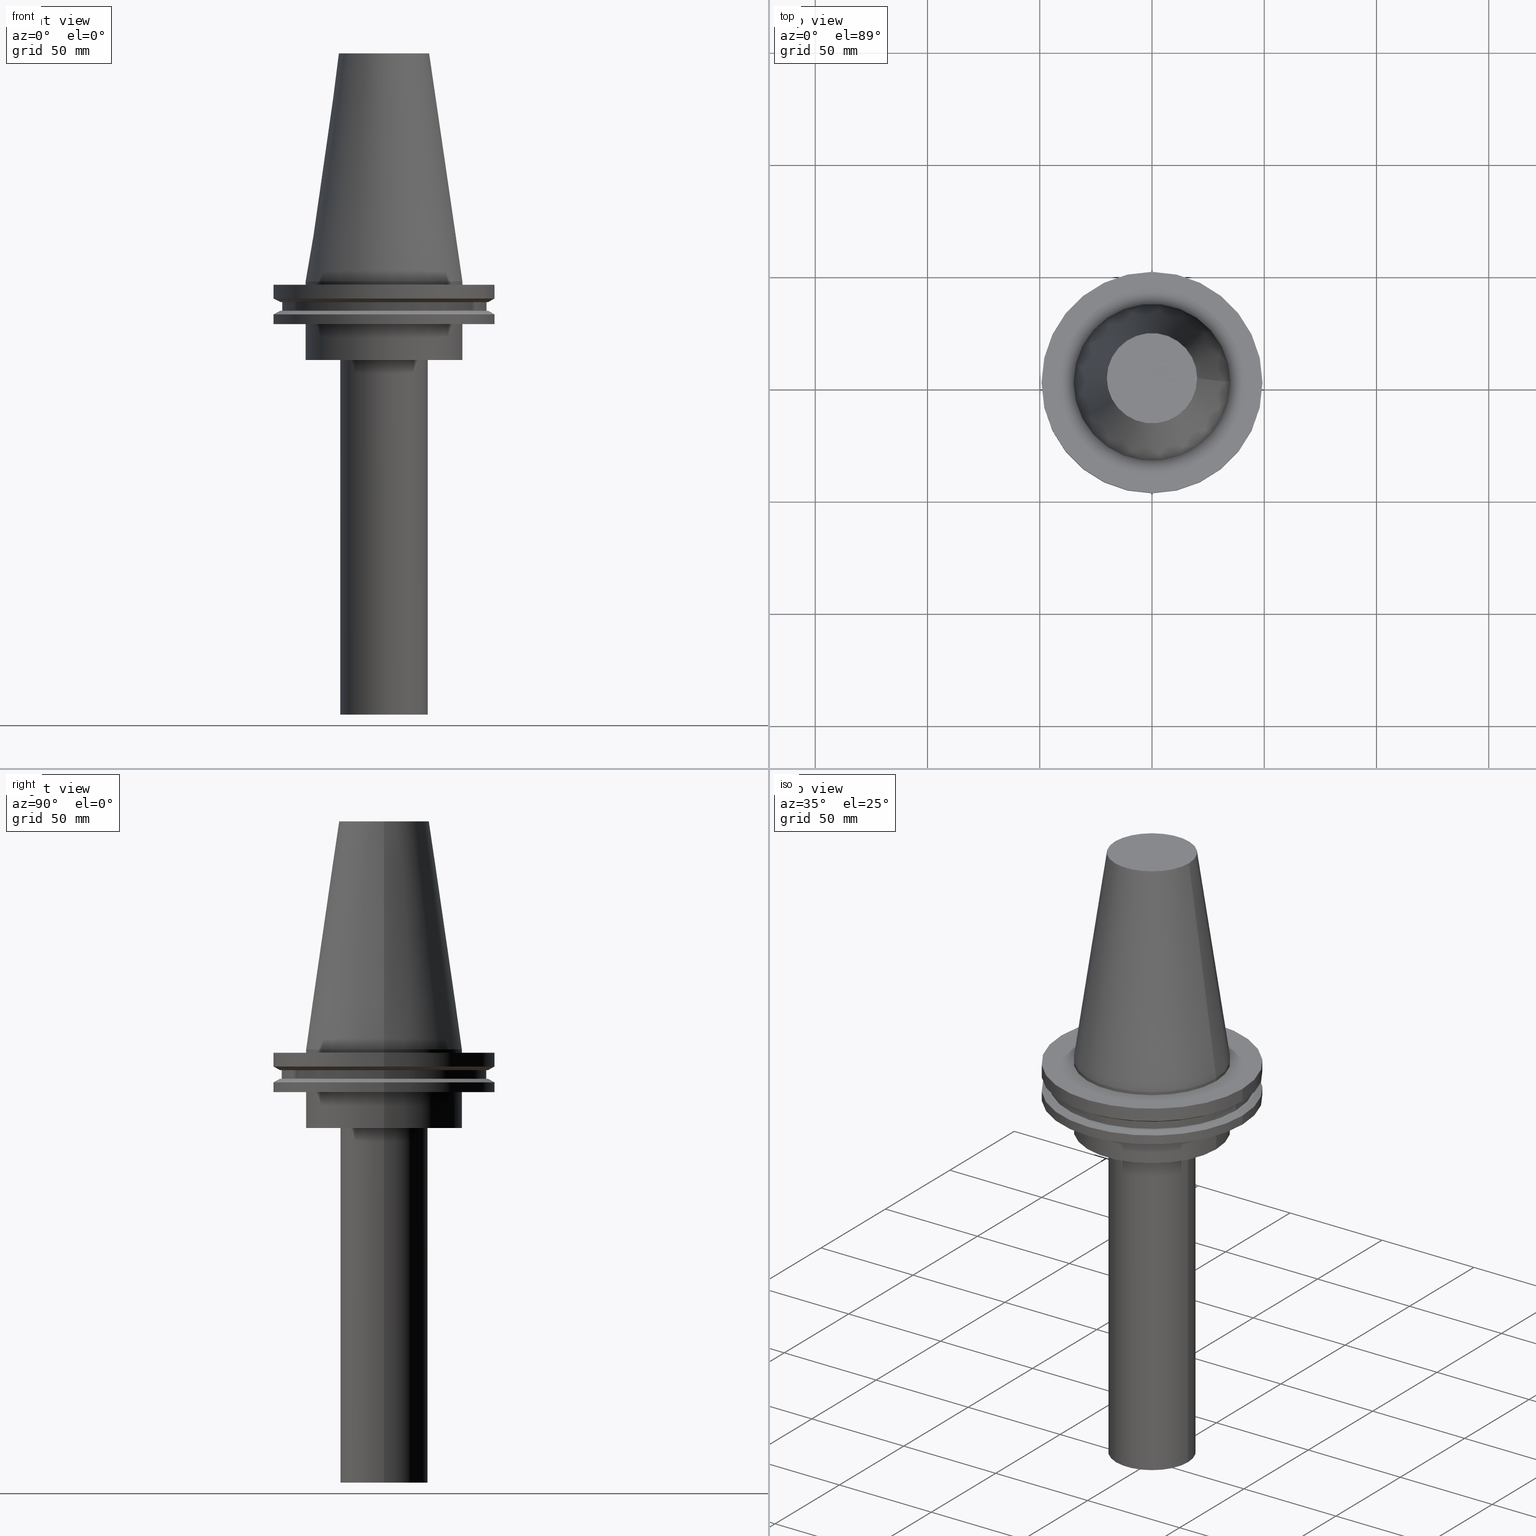
[diagram: canonical four-view strip — front | top / right | iso, engineering-drawing reading convention]
A machine part, canonical four-view strip (front | top / right | iso — engineering-drawing reading convention). The complete STEP part file that produces these views, byte-faithful:
ISO-10303-21;
HEADER;
FILE_DESCRIPTION (( 'STEP AP203' ),
    '1' );
FILE_NAME ('11.326.645.stp',
    '2022-03-09T14:51:24',
    ( '' ),
    ( '' ),
    'SwSTEP 2.0',
    'SolidWorks 2021',
    '' );
FILE_SCHEMA (( 'CONFIG_CONTROL_DESIGN' ));
ENDSEC;

DATA;
#1 = VERTEX_POINT ( 'NONE', #309 ) ;
#2 = ORIENTED_EDGE ( 'NONE', *, *, #239, .F. ) ;
#3 = LOCAL_TIME ( 8, 51, 24.00000000000000000, #191 ) ;
#4 = EDGE_CURVE ( 'NONE', #203, #203, #143, .T. ) ;
#5 = VERTEX_POINT ( 'NONE', #37 ) ;
#6 = ORIENTED_EDGE ( 'NONE', *, *, #231, .F. ) ;
#7 = DATE_TIME_ROLE ( 'creation_date' ) ;
#8 = EDGE_LOOP ( 'NONE', ( #247 ) ) ;
#9 = ORIENTED_EDGE ( 'NONE', *, *, #64, .F. ) ;
#10 = AXIS2_PLACEMENT_3D ( 'NONE', #294, #330, #229 ) ;
#11 = CARTESIAN_POINT ( 'NONE',  ( 0.000000000000000000, 46.43919780457007818, -9.204999999999998295 ) ) ;
#12 = DIRECTION ( 'NONE',  ( 0.000000000000000000, 0.000000000000000000, -1.000000000000000000 ) ) ;
#13 = DIRECTION ( 'NONE',  ( -0.000000000000000000, -0.000000000000000000, 1.000000000000000000 ) ) ;
#14 = APPROVAL_STATUS ( 'not_yet_approved' ) ;
#15 = FACE_OUTER_BOUND ( 'NONE', #277, .T. ) ;
#16 = PERSON_AND_ORGANIZATION ( #256, #169 ) ;
#17 = EDGE_CURVE ( 'NONE', #77, #77, #104, .T. ) ;
#18 = DIRECTION ( 'NONE',  ( 0.000000000000000000, -0.000000000000000000, 1.000000000000000000 ) ) ;
#19 = FACE_OUTER_BOUND ( 'NONE', #149, .T. ) ;
#20 = ADVANCED_FACE ( 'NONE', ( #186, #113 ), #60, .T. ) ;
#21 = PLANE ( 'NONE',  #290 ) ;
#22 = AXIS2_PLACEMENT_3D ( 'NONE', #44, #12, #96 ) ;
#23 = PLANE ( 'NONE',  #43 ) ;
#24 = EDGE_CURVE ( 'NONE', #233, #233, #136, .T. ) ;
#25 = CARTESIAN_POINT ( 'NONE',  ( 20.10819343178871321, 0.000000000000000000, 101.5999999999999801 ) ) ;
#26 = DIRECTION ( 'NONE',  ( -0.000000000000000000, -0.000000000000000000, 1.000000000000000000 ) ) ;
#27 = EDGE_LOOP ( 'NONE', ( #52 ) ) ;
#28 = AXIS2_PLACEMENT_3D ( 'NONE', #298, #109, #387 ) ;
#29 = AXIS2_PLACEMENT_3D ( 'NONE', #11, #18, #194 ) ;
#30 = ORIENTED_EDGE ( 'NONE', *, *, #42, .T. ) ;
#31 = EDGE_LOOP ( 'NONE', ( #295 ) ) ;
#32 = VERTEX_POINT ( 'NONE', #369 ) ;
#33 = ORIENTED_EDGE ( 'NONE', *, *, #351, .F. ) ;
#34 = AXIS2_PLACEMENT_3D ( 'NONE', #324, #132, #78 ) ;
#35 = PERSON_AND_ORGANIZATION ( #256, #169 ) ;
#36 = EDGE_LOOP ( 'NONE', ( #2 ) ) ;
#37 = CARTESIAN_POINT ( 'NONE',  ( 34.92499999999999005, 0.000000000000000000, 0.000000000000000000 ) ) ;
#38 = DIRECTION ( 'NONE',  ( -0.000000000000000000, -0.000000000000000000, 1.000000000000000000 ) ) ;
#39 = APPROVAL_DATE_TIME ( #345, #252 ) ;
#40 = DIRECTION ( 'NONE',  ( -0.000000000000000000, -0.000000000000000000, 1.000000000000000000 ) ) ;
#41 = FACE_BOUND ( 'NONE', #27, .T. ) ;
#42 = EDGE_CURVE ( 'NONE', #299, #299, #59, .T. ) ;
#43 = AXIS2_PLACEMENT_3D ( 'NONE', #293, #75, #55 ) ;
#44 = CARTESIAN_POINT ( 'NONE',  ( 0.000000000000000000, 0.000000000000000000, 0.000000000000000000 ) ) ;
#45 = ADVANCED_FACE ( 'NONE', ( #253, #122 ), #138, .T. ) ;
#46 = APPROVAL_DATE_TIME ( #222, #278 ) ;
#47 = DIRECTION ( 'NONE',  ( 1.000000000000000000, 0.000000000000000000, 0.000000000000000000 ) ) ;
#48 = FACE_OUTER_BOUND ( 'NONE', #80, .T. ) ;
#49 = AXIS2_PLACEMENT_3D ( 'NONE', #383, #128, #289 ) ;
#50 = CARTESIAN_POINT ( 'NONE',  ( 0.000000000000000000, 0.000000000000000000, 101.5999999999999943 ) ) ;
#51 = DIRECTION ( 'NONE',  ( 1.000000000000000000, 0.000000000000000000, 0.000000000000000000 ) ) ;
#52 = ORIENTED_EDGE ( 'NONE', *, *, #164, .T. ) ;
#53 = CARTESIAN_POINT ( 'NONE',  ( 0.000000000000000000, 19.50000000000000000, -193.0000000000000000 ) ) ;
#54 = ADVANCED_FACE ( 'NONE', ( #158, #225 ), #156, .T. ) ;
#55 = DIRECTION ( 'NONE',  ( -1.000000000000000000, 0.000000000000000000, -0.000000000000000000 ) ) ;
#56 = CARTESIAN_POINT ( 'NONE',  ( 0.000000000000000000, 0.000000000000000000, -35.00000000000000000 ) ) ;
#57 = DATE_AND_TIME ( #151, #328 ) ;
#58 = DATE_AND_TIME ( #394, #254 ) ;
#59 = CIRCLE ( 'NONE', #228, 19.50000000000000000 ) ;
#60 = CYLINDRICAL_SURFACE ( 'NONE', #355, 49.21499999999999631 ) ;
#61 = CARTESIAN_POINT ( 'NONE',  ( 0.000000000000000000, 0.000000000000000000, -193.0000000000000000 ) ) ;
#62 = PERSON_AND_ORGANIZATION_ROLE ( 'design_owner' ) ;
#63 = EDGE_LOOP ( 'NONE', ( #216 ) ) ;
#64 = EDGE_CURVE ( 'NONE', #230, #230, #297, .T. ) ;
#65 = APPROVAL_STATUS ( 'not_yet_approved' ) ;
#66 = DIRECTION ( 'NONE',  ( 1.000000000000000000, 0.000000000000000000, 0.000000000000000000 ) ) ;
#67 = ORIENTED_EDGE ( 'NONE', *, *, #385, .F. ) ;
#68 = DIRECTION ( 'NONE',  ( -0.000000000000000000, -0.000000000000000000, 1.000000000000000000 ) ) ;
#69 = PERSON_AND_ORGANIZATION_ROLE ( 'creator' ) ;
#70 = CARTESIAN_POINT ( 'NONE',  ( 0.000000000000000000, 0.000000000000000000, -13.05499999999999794 ) ) ;
#71 = PLANE ( 'NONE',  #29 ) ;
#72 = DIRECTION ( 'NONE',  ( 1.000000000000000000, 0.000000000000000000, 0.000000000000000000 ) ) ;
#73 = CIRCLE ( 'NONE', #334, 19.50000000000000000 ) ;
#74 = FACE_OUTER_BOUND ( 'NONE', #36, .T. ) ;
#75 = DIRECTION ( 'NONE',  ( 0.000000000000000000, 0.000000000000000000, -1.000000000000000000 ) ) ;
#76 = ORIENTED_EDGE ( 'NONE', *, *, #231, .T. ) ;
#77 = VERTEX_POINT ( 'NONE', #25 ) ;
#78 = DIRECTION ( 'NONE',  ( -1.000000000000000000, 0.000000000000000000, -0.000000000000000000 ) ) ;
#79 = FACE_OUTER_BOUND ( 'NONE', #280, .T. ) ;
#80 = EDGE_LOOP ( 'NONE', ( #33 ) ) ;
#81 = VERTEX_POINT ( 'NONE', #112 ) ;
#82 = DIRECTION ( 'NONE',  ( -0.000000000000000000, -0.000000000000000000, 1.000000000000000000 ) ) ;
#83 = VERTEX_POINT ( 'NONE', #184 ) ;
#84 = AXIS2_PLACEMENT_3D ( 'NONE', #318, #130, #258 ) ;
#85 = CARTESIAN_POINT ( 'NONE',  ( 0.000000000000000000, 0.000000000000000000, -19.04999999999999716 ) ) ;
#86 = DIRECTION ( 'NONE',  ( 0.000000000000000000, 0.000000000000000000, 1.000000000000000000 ) ) ;
#87 = EDGE_LOOP ( 'NONE', ( #152 ) ) ;
#88 = CC_DESIGN_DATE_AND_TIME_ASSIGNMENT ( #58, #7, ( #199 ) ) ;
#89 = VERTEX_POINT ( 'NONE', #338 ) ;
#90 = EDGE_LOOP ( 'NONE', ( #312 ) ) ;
#91 = CIRCLE ( 'NONE', #28, 49.21499999999999631 ) ;
#92 = CARTESIAN_POINT ( 'NONE',  ( 0.000000000000000000, 0.000000000000000000, 101.5999999999999801 ) ) ;
#93 = AXIS2_PLACEMENT_3D ( 'NONE', #85, #118, #179 ) ;
#94 = FACE_OUTER_BOUND ( 'NONE', #90, .T. ) ;
#95 = CALENDAR_DATE ( 2022, 9, 3 ) ;
#96 = DIRECTION ( 'NONE',  ( -1.000000000000000000, 0.000000000000000000, 0.000000000000000000 ) ) ;
#97 = APPROVAL_PERSON_ORGANIZATION ( #304, #168, #333 ) ;
#98 = DIRECTION ( 'NONE',  ( 0.000000000000000000, -0.000000000000000000, 1.000000000000000000 ) ) ;
#99 = COORDINATED_UNIVERSAL_TIME_OFFSET ( 6, 0, .BEHIND. ) ;
#100 = FACE_OUTER_BOUND ( 'NONE', #87, .T. ) ;
#101 = CC_DESIGN_PERSON_AND_ORGANIZATION_ASSIGNMENT ( #35, #62, ( #389 ) ) ;
#102 = DIRECTION ( 'NONE',  ( -0.000000000000000000, -0.000000000000000000, 1.000000000000000000 ) ) ;
#103 = FACE_BOUND ( 'NONE', #237, .T. ) ;
#104 = CIRCLE ( 'NONE', #381, 20.10819343178871321 ) ;
#105 = CIRCLE ( 'NONE', #212, 34.92499999999999005 ) ;
#106 = FACE_OUTER_BOUND ( 'NONE', #214, .T. ) ;
#107 = CARTESIAN_POINT ( 'NONE',  ( 19.50000000000000000, 0.000000000000000000, -193.0000000000000000 ) ) ;
#108 = CARTESIAN_POINT ( 'NONE',  ( 49.21499999999998920, 0.000000000000000000, -14.65761014474876944 ) ) ;
#109 = DIRECTION ( 'NONE',  ( -0.000000000000000000, -0.000000000000000000, 1.000000000000000000 ) ) ;
#110 =( NAMED_UNIT ( * ) SI_UNIT ( $, .STERADIAN. ) SOLID_ANGLE_UNIT ( ) );
#111 = ORIENTED_EDGE ( 'NONE', *, *, #164, .F. ) ;
#112 = CARTESIAN_POINT ( 'NONE',  ( 49.21500000000000341, 0.000000000000000000, -7.602389855251287187 ) ) ;
#113 = FACE_OUTER_BOUND ( 'NONE', #343, .T. ) ;
#114 = EDGE_LOOP ( 'NONE', ( #339 ) ) ;
#115 = APPROVAL_ROLE ( '' ) ;
#116 = ORIENTED_EDGE ( 'NONE', *, *, #320, .F. ) ;
#117 = VERTEX_POINT ( 'NONE', #276 ) ;
#118 = DIRECTION ( 'NONE',  ( -0.000000000000000000, -0.000000000000000000, 1.000000000000000000 ) ) ;
#119 = ADVANCED_FACE ( 'NONE', ( #379, #250 ), #219, .F. ) ;
#120 = CIRCLE ( 'NONE', #133, 45.64500000000000313 ) ;
#121 = AXIS2_PLACEMENT_3D ( 'NONE', #395, #82, #342 ) ;
#122 = FACE_OUTER_BOUND ( 'NONE', #307, .T. ) ;
#123 = AXIS2_PLACEMENT_3D ( 'NONE', #190, #377, #47 ) ;
#124 = CC_DESIGN_PERSON_AND_ORGANIZATION_ASSIGNMENT ( #154, #161, ( #202 ) ) ;
#125 = SECURITY_CLASSIFICATION_LEVEL ( 'unclassified' ) ;
#126 = DIRECTION ( 'NONE',  ( -0.000000000000000000, -0.000000000000000000, 1.000000000000000000 ) ) ;
#127 = PERSON_AND_ORGANIZATION_ROLE ( 'design_supplier' ) ;
#128 = DIRECTION ( 'NONE',  ( 0.000000000000000000, -0.000000000000000000, 1.000000000000000000 ) ) ;
#129 = ADVANCED_FACE ( 'NONE', ( #288, #223 ), #265, .T. ) ;
#130 = DIRECTION ( 'NONE',  ( -0.000000000000000000, -0.000000000000000000, 1.000000000000000000 ) ) ;
#131 = DIRECTION ( 'NONE',  ( -0.000000000000000000, -0.000000000000000000, 1.000000000000000000 ) ) ;
#132 = DIRECTION ( 'NONE',  ( 0.000000000000000000, 0.000000000000000000, -1.000000000000000000 ) ) ;
#133 = AXIS2_PLACEMENT_3D ( 'NONE', #266, #226, #51 ) ;
#134 = CC_DESIGN_APPROVAL ( #278, ( #202 ) ) ;
#135 = DIRECTION ( 'NONE',  ( 1.000000000000000000, 0.000000000000000000, 0.000000000000000000 ) ) ;
#136 = CIRCLE ( 'NONE', #93, 49.21499999999998920 ) ;
#137 = CC_DESIGN_PERSON_AND_ORGANIZATION_ASSIGNMENT ( #16, #127, ( #262 ) ) ;
#138 = CONICAL_SURFACE ( 'NONE', #22, 34.92499999999999005, 0.1448138465474119452 ) ;
#139 = DIRECTION ( 'NONE',  ( 1.000000000000000000, 0.000000000000000000, 0.000000000000000000 ) ) ;
#140 = CARTESIAN_POINT ( 'NONE',  ( 46.43919780457007818, 0.000000000000000000, -13.05499999999999794 ) ) ;
#141 = CARTESIAN_POINT ( 'NONE',  ( 0.000000000000000000, 49.21499999999999631, -1.499999999999992895 ) ) ;
#142 = EDGE_CURVE ( 'NONE', #245, #245, #249, .T. ) ;
#143 = CIRCLE ( 'NONE', #121, 49.21499999999998920 ) ;
#144 = CIRCLE ( 'NONE', #317, 34.92499999999999716 ) ;
#145 = DIRECTION ( 'NONE',  ( 1.000000000000000000, 0.000000000000000000, 0.000000000000000000 ) ) ;
#146 = ORIENTED_EDGE ( 'NONE', *, *, #320, .T. ) ;
#147 = COORDINATED_UNIVERSAL_TIME_OFFSET ( 6, 0, .BEHIND. ) ;
#148 = ORIENTED_EDGE ( 'NONE', *, *, #378, .T. ) ;
#149 = EDGE_LOOP ( 'NONE', ( #181 ) ) ;
#150 = CC_DESIGN_APPROVAL ( #168, ( #199 ) ) ;
#151 = CALENDAR_DATE ( 2022, 9, 3 ) ;
#152 = ORIENTED_EDGE ( 'NONE', *, *, #24, .F. ) ;
#153 = DIRECTION ( 'NONE',  ( 1.000000000000000000, 0.000000000000000000, 0.000000000000000000 ) ) ;
#154 = PERSON_AND_ORGANIZATION ( #256, #169 ) ;
#155 = DIRECTION ( 'NONE',  ( 1.000000000000000000, 0.000000000000000000, 0.000000000000000000 ) ) ;
#156 = CYLINDRICAL_SURFACE ( 'NONE', #193, 19.50000000000000000 ) ;
#157 = PERSON_AND_ORGANIZATION ( #256, #169 ) ;
#158 = FACE_OUTER_BOUND ( 'NONE', #274, .T. ) ;
#159 = ADVANCED_FACE ( 'NONE', ( #100, #41 ), #350, .F. ) ;
#160 = DIRECTION ( 'NONE',  ( 1.000000000000000000, 0.000000000000000000, 0.000000000000000000 ) ) ;
#161 = PERSON_AND_ORGANIZATION_ROLE ( 'classification_officer' ) ;
#162 = CARTESIAN_POINT ( 'NONE',  ( 0.000000000000000000, 0.000000000000000000, -13.05499999999999794 ) ) ;
#163 = MANIFOLD_SOLID_BREP ( 'CKB', #185 ) ;
#164 = EDGE_CURVE ( 'NONE', #32, #32, #144, .T. ) ;
#165 = DIRECTION ( 'NONE',  ( 0.000000000000000000, 0.000000000000000000, -1.000000000000000000 ) ) ;
#166 = CYLINDRICAL_SURFACE ( 'NONE', #10, 45.64500000000000313 ) ;
#167 = EDGE_LOOP ( 'NONE', ( #30 ) ) ;
#168 = APPROVAL ( #180, 'UNSPECIFIED' ) ;
#169 = ORGANIZATION ( 'UNSPECIFIED', 'UNSPECIFIED', '' ) ;
#170 = CARTESIAN_POINT ( 'NONE',  ( 0.000000000000000000, 0.000000000000000000, -14.65761014474876944 ) ) ;
#171 = AXIS2_PLACEMENT_3D ( 'NONE', #282, #126, #221 ) ;
#172 = DIRECTION ( 'NONE',  ( 1.000000000000000000, 0.000000000000000000, 0.000000000000000000 ) ) ;
#173 = ADVANCED_FACE ( 'NONE', ( #48, #15 ), #259, .T. ) ;
#174 = PLANE ( 'NONE',  #248 ) ;
#175 = CIRCLE ( 'NONE', #301, 34.92499999999999005 ) ;
#176 =( NAMED_UNIT ( * ) PLANE_ANGLE_UNIT ( ) SI_UNIT ( $, .RADIAN. ) );
#177 = CIRCLE ( 'NONE', #84, 46.43919780457007818 ) ;
#178 = PERSON_AND_ORGANIZATION ( #256, #169 ) ;
#179 = DIRECTION ( 'NONE',  ( 1.000000000000000000, 0.000000000000000000, 0.000000000000000000 ) ) ;
#180 = APPROVAL_STATUS ( 'not_yet_approved' ) ;
#181 = ORIENTED_EDGE ( 'NONE', *, *, #42, .F. ) ;
#182 = APPLICATION_PROTOCOL_DEFINITION ( 'international standard', 'config_control_design', 1994, #332 ) ;
#183 = ORIENTED_EDGE ( 'NONE', *, *, #316, .T. ) ;
#184 = CARTESIAN_POINT ( 'NONE',  ( 46.43919780457007818, 0.000000000000000000, -9.204999999999991189 ) ) ;
#185 = CLOSED_SHELL ( 'NONE', ( #45, #362, #119, #308, #159, #236, #286, #246, #391, #224, #129, #20, #313, #173, #54, #327 ) ) ;
#186 = FACE_OUTER_BOUND ( 'NONE', #331, .T. ) ;
#187 = EDGE_CURVE ( 'NONE', #1, #1, #198, .T. ) ;
#188 = EDGE_LOOP ( 'NONE', ( #373 ) ) ;
#189 = CALENDAR_DATE ( 2022, 9, 3 ) ;
#190 = CARTESIAN_POINT ( 'NONE',  ( 0.000000000000000000, 0.000000000000000000, 101.5999999999999943 ) ) ;
#191 = COORDINATED_UNIVERSAL_TIME_OFFSET ( 6, 0, .BEHIND. ) ;
#192 = DIRECTION ( 'NONE',  ( 1.000000000000000000, 0.000000000000000000, 0.000000000000000000 ) ) ;
#193 = AXIS2_PLACEMENT_3D ( 'NONE', #220, #314, #315 ) ;
#194 = DIRECTION ( 'NONE',  ( 1.000000000000000000, 0.000000000000000000, 0.000000000000000000 ) ) ;
#195 = PERSON_AND_ORGANIZATION ( #256, #169 ) ;
#196 = CARTESIAN_POINT ( 'NONE',  ( 0.000000000000000000, 0.000000000000000000, -35.00000000000000000 ) ) ;
#197 = DIRECTION ( 'NONE',  ( -0.000000000000000000, -0.000000000000000000, 1.000000000000000000 ) ) ;
#198 = CIRCLE ( 'NONE', #386, 34.92499999999999716 ) ;
#199 = PRODUCT_DEFINITION ( 'UNKNOWN', '', #262, #275 ) ;
#200 = CYLINDRICAL_SURFACE ( 'NONE', #392, 34.92499999999999716 ) ;
#201 = CARTESIAN_POINT ( 'NONE',  ( 49.21499999999998920, 0.000000000000000000, -19.04999999999999716 ) ) ;
#202 = SECURITY_CLASSIFICATION ( '', '', #125 ) ;
#203 = VERTEX_POINT ( 'NONE', #108 ) ;
#204 = PRODUCT_RELATED_PRODUCT_CATEGORY ( 'detail', '', ( #389 ) ) ;
#205 = PRODUCT_DEFINITION_SHAPE ( 'NONE', 'NONE',  #199 ) ;
#206 = DIRECTION ( 'NONE',  ( 0.000000000000000000, 0.000000000000000000, -1.000000000000000000 ) ) ;
#207 = EDGE_LOOP ( 'NONE', ( #9 ) ) ;
#208 = APPLICATION_PROTOCOL_DEFINITION ( 'international standard', 'config_control_design', 1994, #303 ) ;
#209 = COORDINATED_UNIVERSAL_TIME_OFFSET ( 6, 0, .BEHIND. ) ;
#210 = CC_DESIGN_APPROVAL ( #252, ( #262 ) ) ;
#211 = DIRECTION ( 'NONE',  ( -0.000000000000000000, -0.000000000000000000, 1.000000000000000000 ) ) ;
#212 = AXIS2_PLACEMENT_3D ( 'NONE', #319, #13, #376 ) ;
#213 = CC_DESIGN_PERSON_AND_ORGANIZATION_ASSIGNMENT ( #271, #279, ( #199 ) ) ;
#214 = EDGE_LOOP ( 'NONE', ( #300 ) ) ;
#215 = CARTESIAN_POINT ( 'NONE',  ( 0.000000000000000000, 0.000000000000000000, 0.000000000000000000 ) ) ;
#216 = ORIENTED_EDGE ( 'NONE', *, *, #17, .F. ) ;
#217 = ORIENTED_EDGE ( 'NONE', *, *, #17, .T. ) ;
#218 = DIRECTION ( 'NONE',  ( 1.000000000000000000, 0.000000000000000000, 0.000000000000000000 ) ) ;
#219 = PLANE ( 'NONE',  #49 ) ;
#220 = CARTESIAN_POINT ( 'NONE',  ( 0.000000000000000000, 0.000000000000000000, 0.000000000000000000 ) ) ;
#221 = DIRECTION ( 'NONE',  ( 1.000000000000000000, 0.000000000000000000, 0.000000000000000000 ) ) ;
#222 = DATE_AND_TIME ( #95, #3 ) ;
#223 = FACE_BOUND ( 'NONE', #31, .T. ) ;
#224 = ADVANCED_FACE ( 'NONE', ( #74, #322 ), #71, .F. ) ;
#225 = FACE_OUTER_BOUND ( 'NONE', #167, .T. ) ;
#226 = DIRECTION ( 'NONE',  ( -0.000000000000000000, -0.000000000000000000, 1.000000000000000000 ) ) ;
#227 = ORIENTED_EDGE ( 'NONE', *, *, #4, .F. ) ;
#228 = AXIS2_PLACEMENT_3D ( 'NONE', #61, #281, #218 ) ;
#229 = DIRECTION ( 'NONE',  ( 1.000000000000000000, 0.000000000000000000, 0.000000000000000000 ) ) ;
#230 = VERTEX_POINT ( 'NONE', #140 ) ;
#231 = EDGE_CURVE ( 'NONE', #273, #273, #105, .T. ) ;
#232 = EDGE_LOOP ( 'NONE', ( #67 ) ) ;
#233 = VERTEX_POINT ( 'NONE', #201 ) ;
#234 = FACE_OUTER_BOUND ( 'NONE', #235, .T. ) ;
#235 = EDGE_LOOP ( 'NONE', ( #111 ) ) ;
#236 = ADVANCED_FACE ( 'NONE', ( #344, #94 ), #251, .T. ) ;
#237 = EDGE_LOOP ( 'NONE', ( #264 ) ) ;
#238 = UNCERTAINTY_MEASURE_WITH_UNIT (LENGTH_MEASURE( 1.000000000000000082E-05 ), #306, 'distance_accuracy_value', 'NONE');
#239 = EDGE_CURVE ( 'NONE', #83, #83, #177, .T. ) ;
#240 = MECHANICAL_CONTEXT ( 'NONE', #303, 'mechanical' ) ;
#241 = ORIENTED_EDGE ( 'NONE', *, *, #351, .T. ) ;
#242 = AXIS2_PLACEMENT_3D ( 'NONE', #382, #98, #285 ) ;
#243 = CARTESIAN_POINT ( 'NONE',  ( 34.92499999999999005, 0.000000000000000000, -1.499999999999987566 ) ) ;
#244 = ORIENTED_EDGE ( 'NONE', *, *, #64, .T. ) ;
#245 = VERTEX_POINT ( 'NONE', #311 ) ;
#246 = ADVANCED_FACE ( 'NONE', ( #103, #263 ), #23, .F. ) ;
#247 = ORIENTED_EDGE ( 'NONE', *, *, #378, .F. ) ;
#248 = AXIS2_PLACEMENT_3D ( 'NONE', #53, #269, #393 ) ;
#249 = CIRCLE ( 'NONE', #323, 45.64500000000000313 ) ;
#250 = FACE_OUTER_BOUND ( 'NONE', #336, .T. ) ;
#251 = CYLINDRICAL_SURFACE ( 'NONE', #123, 49.21499999999998920 ) ;
#252 = APPROVAL ( #65, 'UNSPECIFIED' ) ;
#253 = FACE_BOUND ( 'NONE', #63, .T. ) ;
#254 = LOCAL_TIME ( 8, 51, 24.00000000000000000, #209 ) ;
#255 = APPROVAL_PERSON_ORGANIZATION ( #178, #252, #115 ) ;
#256 = PERSON ( 'UNSPECIFIED', 'UNSPECIFIED', 'UNSPECIFIED', ('UNSPECIFIED'), ('UNSPECIFIED'), ('UNSPECIFIED') ) ;
#257 = APPROVAL_ROLE ( '' ) ;
#258 = DIRECTION ( 'NONE',  ( 1.000000000000000000, 0.000000000000000000, 0.000000000000000000 ) ) ;
#259 = CYLINDRICAL_SURFACE ( 'NONE', #171, 34.92499999999999005 ) ;
#260 = CARTESIAN_POINT ( 'NONE',  ( 0.000000000000000000, 0.000000000000000000, -7.602389855251287187 ) ) ;
#261 =( GEOMETRIC_REPRESENTATION_CONTEXT ( 3 ) GLOBAL_UNCERTAINTY_ASSIGNED_CONTEXT ( ( #238 ) ) GLOBAL_UNIT_ASSIGNED_CONTEXT ( ( #306, #176, #110 ) ) REPRESENTATION_CONTEXT ( 'NONE', 'WORKASPACE' ) );
#262 = PRODUCT_DEFINITION_FORMATION_WITH_SPECIFIED_SOURCE ( 'ANY', '', #389, .NOT_KNOWN. ) ;
#263 = FACE_OUTER_BOUND ( 'NONE', #375, .T. ) ;
#264 = ORIENTED_EDGE ( 'NONE', *, *, #142, .F. ) ;
#265 = CONICAL_SURFACE ( 'NONE', #368, 46.43919780457007818, 1.047197551196575205 ) ;
#266 = CARTESIAN_POINT ( 'NONE',  ( 0.000000000000000000, 0.000000000000000000, -9.204999999999991189 ) ) ;
#267 = FACE_BOUND ( 'NONE', #207, .T. ) ;
#268 = EDGE_LOOP ( 'NONE', ( #183 ) ) ;
#269 = DIRECTION ( 'NONE',  ( 0.000000000000000000, -0.000000000000000000, 1.000000000000000000 ) ) ;
#270 = AXIS2_PLACEMENT_3D ( 'NONE', #162, #131, #160 ) ;
#271 = PERSON_AND_ORGANIZATION ( #256, #169 ) ;
#272 = EDGE_LOOP ( 'NONE', ( #146 ) ) ;
#273 = VERTEX_POINT ( 'NONE', #243 ) ;
#274 = EDGE_LOOP ( 'NONE', ( #310 ) ) ;
#275 = DESIGN_CONTEXT ( 'detailed design', #332, 'design' ) ;
#276 = CARTESIAN_POINT ( 'NONE',  ( 49.21499999999999631, 0.000000000000000000, -1.499999999999987566 ) ) ;
#277 = EDGE_LOOP ( 'NONE', ( #76 ) ) ;
#278 = APPROVAL ( #14, 'UNSPECIFIED' ) ;
#279 = PERSON_AND_ORGANIZATION_ROLE ( 'creator' ) ;
#280 = EDGE_LOOP ( 'NONE', ( #217 ) ) ;
#281 = DIRECTION ( 'NONE',  ( -0.000000000000000000, -0.000000000000000000, 1.000000000000000000 ) ) ;
#282 = CARTESIAN_POINT ( 'NONE',  ( 0.000000000000000000, 0.000000000000000000, 101.5999999999999943 ) ) ;
#283 = CC_DESIGN_SECURITY_CLASSIFICATION ( #202, ( #262 ) ) ;
#284 = CONICAL_SURFACE ( 'NONE', #337, 49.21499999999998920, 1.047197551196554333 ) ;
#285 = DIRECTION ( 'NONE',  ( 1.000000000000000000, 0.000000000000000000, 0.000000000000000000 ) ) ;
#286 = ADVANCED_FACE ( 'NONE', ( #267, #329 ), #284, .T. ) ;
#287 = SHAPE_DEFINITION_REPRESENTATION ( #205, #291 ) ;
#288 = FACE_OUTER_BOUND ( 'NONE', #8, .T. ) ;
#289 = DIRECTION ( 'NONE',  ( 1.000000000000000000, 0.000000000000000000, 0.000000000000000000 ) ) ;
#290 = AXIS2_PLACEMENT_3D ( 'NONE', #141, #165, #358 ) ;
#291 = ADVANCED_BREP_SHAPE_REPRESENTATION ( '11.326.645', ( #163, #365 ), #261 ) ;
#292 = CARTESIAN_POINT ( 'NONE',  ( 0.000000000000000000, 0.000000000000000000, -9.204999999999991189 ) ) ;
#293 = CARTESIAN_POINT ( 'NONE',  ( 0.000000000000000000, 45.64500000000000313, -13.05499999999999794 ) ) ;
#294 = CARTESIAN_POINT ( 'NONE',  ( 0.000000000000000000, 0.000000000000000000, 101.5999999999999943 ) ) ;
#295 = ORIENTED_EDGE ( 'NONE', *, *, #239, .T. ) ;
#296 = FACE_OUTER_BOUND ( 'NONE', #272, .T. ) ;
#297 = CIRCLE ( 'NONE', #270, 46.43919780457007818 ) ;
#298 = CARTESIAN_POINT ( 'NONE',  ( 0.000000000000000000, 0.000000000000000000, -1.499999999999987566 ) ) ;
#299 = VERTEX_POINT ( 'NONE', #107 ) ;
#300 = ORIENTED_EDGE ( 'NONE', *, *, #142, .T. ) ;
#301 = AXIS2_PLACEMENT_3D ( 'NONE', #361, #197, #135 ) ;
#302 = CC_DESIGN_PERSON_AND_ORGANIZATION_ASSIGNMENT ( #157, #69, ( #262 ) ) ;
#303 = APPLICATION_CONTEXT ( 'configuration controlled 3d designs of mechanical parts and assemblies' ) ;
#304 = PERSON_AND_ORGANIZATION ( #256, #169 ) ;
#305 = ORIENTED_EDGE ( 'NONE', *, *, #187, .F. ) ;
#306 =( LENGTH_UNIT ( ) NAMED_UNIT ( * ) SI_UNIT ( .MILLI., .METRE. ) );
#307 = EDGE_LOOP ( 'NONE', ( #241 ) ) ;
#308 = ADVANCED_FACE ( 'NONE', ( #234, #388 ), #200, .T. ) ;
#309 = CARTESIAN_POINT ( 'NONE',  ( 34.92499999999999716, 0.000000000000000000, -35.00000000000000000 ) ) ;
#310 = ORIENTED_EDGE ( 'NONE', *, *, #316, .F. ) ;
#311 = CARTESIAN_POINT ( 'NONE',  ( 45.64500000000000313, 0.000000000000000000, -13.05499999999999794 ) ) ;
#312 = ORIENTED_EDGE ( 'NONE', *, *, #24, .T. ) ;
#313 = ADVANCED_FACE ( 'NONE', ( #390, #296 ), #21, .F. ) ;
#314 = DIRECTION ( 'NONE',  ( -0.000000000000000000, -0.000000000000000000, 1.000000000000000000 ) ) ;
#315 = DIRECTION ( 'NONE',  ( 1.000000000000000000, 0.000000000000000000, 0.000000000000000000 ) ) ;
#316 = EDGE_CURVE ( 'NONE', #89, #89, #73, .T. ) ;
#317 = AXIS2_PLACEMENT_3D ( 'NONE', #352, #353, #192 ) ;
#318 = CARTESIAN_POINT ( 'NONE',  ( 0.000000000000000000, 0.000000000000000000, -9.204999999999991189 ) ) ;
#319 = CARTESIAN_POINT ( 'NONE',  ( 0.000000000000000000, 0.000000000000000000, -1.499999999999987566 ) ) ;
#320 = EDGE_CURVE ( 'NONE', #117, #117, #91, .T. ) ;
#321 = DATE_TIME_ROLE ( 'classification_date' ) ;
#322 = FACE_BOUND ( 'NONE', #188, .T. ) ;
#323 = AXIS2_PLACEMENT_3D ( 'NONE', #70, #68, #155 ) ;
#324 = CARTESIAN_POINT ( 'NONE',  ( 0.000000000000000000, 20.10819343178871321, 101.5999999999999943 ) ) ;
#325 = DIRECTION ( 'NONE',  ( -0.000000000000000000, -0.000000000000000000, 1.000000000000000000 ) ) ;
#326 = DIRECTION ( 'NONE',  ( -1.000000000000000000, 0.000000000000000000, 0.000000000000000000 ) ) ;
#327 = ADVANCED_FACE ( 'NONE', ( #19 ), #174, .F. ) ;
#328 = LOCAL_TIME ( 8, 51, 24.00000000000000000, #341 ) ;
#329 = FACE_OUTER_BOUND ( 'NONE', #340, .T. ) ;
#330 = DIRECTION ( 'NONE',  ( -0.000000000000000000, -0.000000000000000000, 1.000000000000000000 ) ) ;
#331 = EDGE_LOOP ( 'NONE', ( #116 ) ) ;
#332 = APPLICATION_CONTEXT ( 'configuration controlled 3d designs of mechanical parts and assemblies' ) ;
#333 = APPROVAL_ROLE ( '' ) ;
#334 = AXIS2_PLACEMENT_3D ( 'NONE', #56, #26, #172 ) ;
#335 = CARTESIAN_POINT ( 'NONE',  ( 45.64500000000000313, 0.000000000000000000, -9.204999999999991189 ) ) ;
#336 = EDGE_LOOP ( 'NONE', ( #305 ) ) ;
#337 = AXIS2_PLACEMENT_3D ( 'NONE', #170, #206, #326 ) ;
#338 = CARTESIAN_POINT ( 'NONE',  ( 19.50000000000000000, 0.000000000000000000, -35.00000000000000000 ) ) ;
#339 = ORIENTED_EDGE ( 'NONE', *, *, #187, .T. ) ;
#340 = EDGE_LOOP ( 'NONE', ( #357 ) ) ;
#341 = COORDINATED_UNIVERSAL_TIME_OFFSET ( 6, 0, .BEHIND. ) ;
#342 = DIRECTION ( 'NONE',  ( 1.000000000000000000, 0.000000000000000000, 0.000000000000000000 ) ) ;
#343 = EDGE_LOOP ( 'NONE', ( #148 ) ) ;
#344 = FACE_OUTER_BOUND ( 'NONE', #364, .T. ) ;
#345 = DATE_AND_TIME ( #374, #380 ) ;
#346 = AXIS2_PLACEMENT_3D ( 'NONE', #260, #359, #384 ) ;
#347 = DIRECTION ( 'NONE',  ( 1.000000000000000000, 0.000000000000000000, 0.000000000000000000 ) ) ;
#348 = LOCAL_TIME ( 8, 51, 24.00000000000000000, #99 ) ;
#349 = DATE_AND_TIME ( #189, #348 ) ;
#350 = PLANE ( 'NONE',  #242 ) ;
#351 = EDGE_CURVE ( 'NONE', #5, #5, #175, .T. ) ;
#352 = CARTESIAN_POINT ( 'NONE',  ( 0.000000000000000000, 0.000000000000000000, -19.04999999999999716 ) ) ;
#353 = DIRECTION ( 'NONE',  ( -0.000000000000000000, -0.000000000000000000, 1.000000000000000000 ) ) ;
#354 = CIRCLE ( 'NONE', #346, 49.21500000000000341 ) ;
#355 = AXIS2_PLACEMENT_3D ( 'NONE', #367, #38, #153 ) ;
#356 = FACE_OUTER_BOUND ( 'NONE', #232, .T. ) ;
#357 = ORIENTED_EDGE ( 'NONE', *, *, #4, .T. ) ;
#358 = DIRECTION ( 'NONE',  ( -1.000000000000000000, 0.000000000000000000, -0.000000000000000000 ) ) ;
#359 = DIRECTION ( 'NONE',  ( -0.000000000000000000, -0.000000000000000000, 1.000000000000000000 ) ) ;
#360 = APPROVAL_PERSON_ORGANIZATION ( #195, #278, #257 ) ;
#361 = CARTESIAN_POINT ( 'NONE',  ( 0.000000000000000000, 0.000000000000000000, 0.000000000000000000 ) ) ;
#362 = ADVANCED_FACE ( 'NONE', ( #79 ), #363, .F. ) ;
#363 = PLANE ( 'NONE',  #34 ) ;
#364 = EDGE_LOOP ( 'NONE', ( #227 ) ) ;
#365 = AXIS2_PLACEMENT_3D ( 'NONE', #215, #86, #145 ) ;
#366 = APPROVAL_DATE_TIME ( #57, #168 ) ;
#367 = CARTESIAN_POINT ( 'NONE',  ( 0.000000000000000000, 0.000000000000000000, 101.5999999999999943 ) ) ;
#368 = AXIS2_PLACEMENT_3D ( 'NONE', #292, #40, #72 ) ;
#369 = CARTESIAN_POINT ( 'NONE',  ( 34.92499999999999716, 0.000000000000000000, -19.04999999999999716 ) ) ;
#370 = CC_DESIGN_DATE_AND_TIME_ASSIGNMENT ( #349, #321, ( #202 ) ) ;
#371 = EDGE_LOOP ( 'NONE', ( #6 ) ) ;
#372 = VERTEX_POINT ( 'NONE', #335 ) ;
#373 = ORIENTED_EDGE ( 'NONE', *, *, #385, .T. ) ;
#374 = CALENDAR_DATE ( 2022, 9, 3 ) ;
#375 = EDGE_LOOP ( 'NONE', ( #244 ) ) ;
#376 = DIRECTION ( 'NONE',  ( 1.000000000000000000, 0.000000000000000000, 0.000000000000000000 ) ) ;
#377 = DIRECTION ( 'NONE',  ( -0.000000000000000000, -0.000000000000000000, 1.000000000000000000 ) ) ;
#378 = EDGE_CURVE ( 'NONE', #81, #81, #354, .T. ) ;
#379 = FACE_BOUND ( 'NONE', #268, .T. ) ;
#380 = LOCAL_TIME ( 8, 51, 24.00000000000000000, #147 ) ;
#381 = AXIS2_PLACEMENT_3D ( 'NONE', #92, #211, #66 ) ;
#382 = CARTESIAN_POINT ( 'NONE',  ( 0.000000000000000000, 49.21499999999998920, -19.04999999999999716 ) ) ;
#383 = CARTESIAN_POINT ( 'NONE',  ( 0.000000000000000000, 34.92499999999999716, -35.00000000000000000 ) ) ;
#384 = DIRECTION ( 'NONE',  ( 1.000000000000000000, 0.000000000000000000, 0.000000000000000000 ) ) ;
#385 = EDGE_CURVE ( 'NONE', #372, #372, #120, .T. ) ;
#386 = AXIS2_PLACEMENT_3D ( 'NONE', #196, #102, #347 ) ;
#387 = DIRECTION ( 'NONE',  ( 1.000000000000000000, 0.000000000000000000, 0.000000000000000000 ) ) ;
#388 = FACE_OUTER_BOUND ( 'NONE', #114, .T. ) ;
#389 = PRODUCT ( '11.326.645', '11.326.645', '', ( #240 ) ) ;
#390 = FACE_BOUND ( 'NONE', #371, .T. ) ;
#391 = ADVANCED_FACE ( 'NONE', ( #356, #106 ), #166, .T. ) ;
#392 = AXIS2_PLACEMENT_3D ( 'NONE', #50, #325, #139 ) ;
#393 = DIRECTION ( 'NONE',  ( 1.000000000000000000, 0.000000000000000000, 0.000000000000000000 ) ) ;
#394 = CALENDAR_DATE ( 2022, 9, 3 ) ;
#395 = CARTESIAN_POINT ( 'NONE',  ( 0.000000000000000000, 0.000000000000000000, -14.65761014474876944 ) ) ;
ENDSEC;
END-ISO-10303-21;
